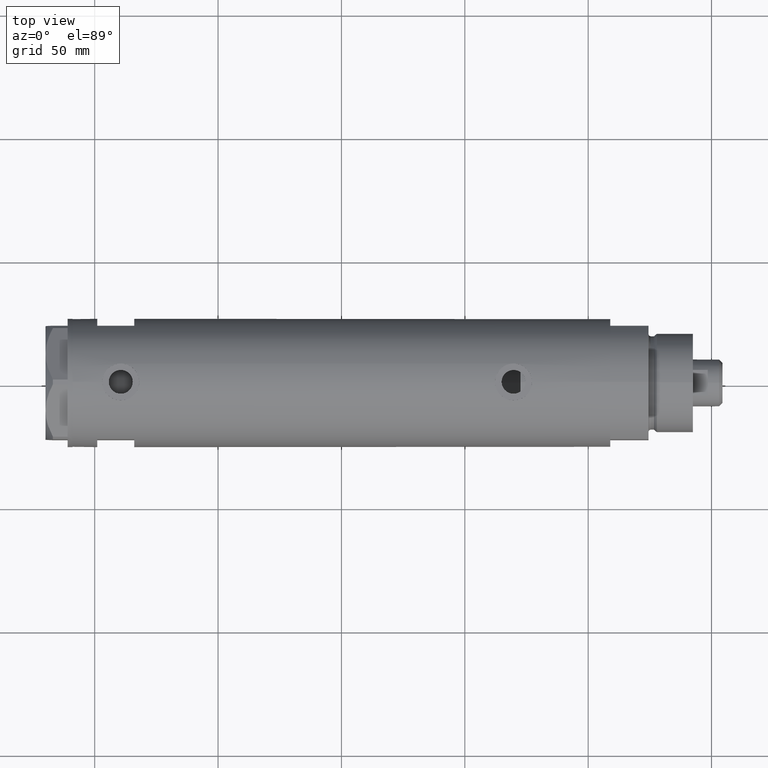
[diagram: clean part render]
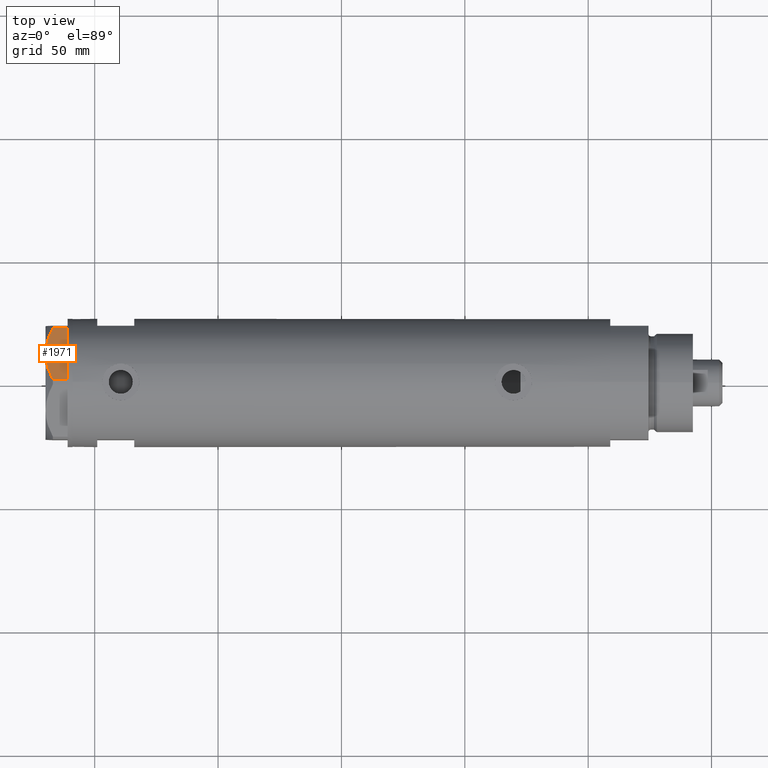
[diagram: same view with one face highlighted and labeled with its STEP entity id]
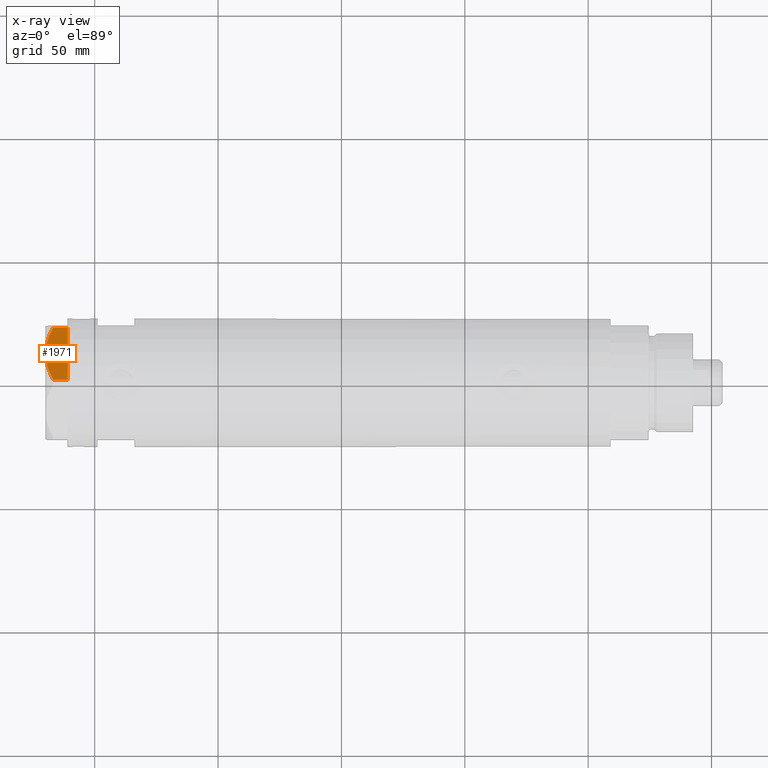
[diagram: x-ray of the same camera — body ghosted, the highlighted face saturated]
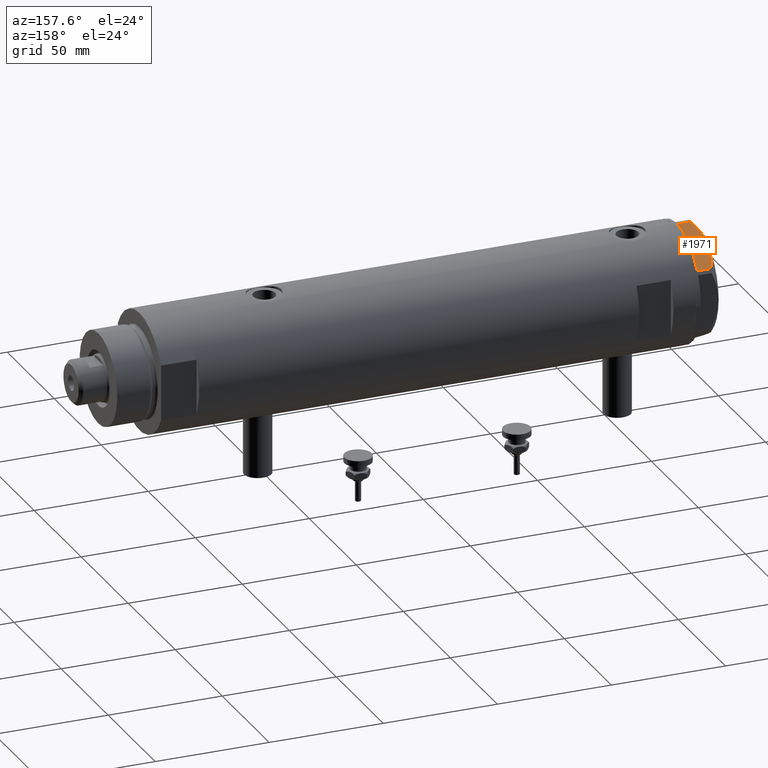
[diagram: same view with one face highlighted and labeled with its STEP entity id]
A machine part, top view. The second image highlights one B-rep face of the part: STEP entity #1971.
The next image is the same camera in x-ray: the body ghosted, the highlighted face saturated — about 0% of this face is hidden behind the body in this view.
A second angle (auxiliary view) of the same face is appended — the face is thin or edge-on in the first view.
In plain terms, the highlighted planar face has unit normal (-0, -0.5, -0.866).
Its self-contained STEP definition (entity closure, byte-faithful):
#112 = CARTESIAN_POINT ( 'NONE',  ( 1.000000000000106803, -25.98076211353316367, 0.000000000000000000 ) ) ;
#117 = PLANE ( 'NONE',  #3287 ) ;
#153 = CARTESIAN_POINT ( 'NONE',  ( 22.00000000000017053, -13.85640646055075464, 0.000000000000000000 ) ) ;
#367 = VERTEX_POINT ( 'NONE', #2540 ) ;
#372 = LINE ( 'NONE', #936, #1645 ) ;
#376 = VERTEX_POINT ( 'NONE', #6236 ) ;
#493 = CARTESIAN_POINT ( 'NONE',  ( 2.626494320835812690, -25.04170517956324460, 6.877782426143459915 ) ) ;
#521 = DIRECTION ( 'NONE',  ( -0.8660254037844344888, -0.5000000000000069944, 0.000000000000000000 ) ) ;
#659 = ORIENTED_EDGE ( 'NONE', *, *, #2680, .T. ) ;
#778 = CARTESIAN_POINT ( 'NONE',  ( 22.03005154776152352, -13.83905619136116449, 5.983800287807632401 ) ) ;
#798 = LINE ( 'NONE', #1820, #1871 ) ;
#903 = CARTESIAN_POINT ( 'NONE',  ( 11.50000000000018296, -19.91858428704203732, 9.000000000000000000 ) ) ;
#918 = ORIENTED_EDGE ( 'NONE', *, *, #2246, .F. ) ;
#936 = CARTESIAN_POINT ( 'NONE',  ( 1.854543075583504180E-13, -26.55811238272274366, 0.000000000000000000 ) ) ;
#1132 = CARTESIAN_POINT ( 'NONE',  ( 1.854543075583504180E-13, -26.55811238272274366, 0.000000000000000000 ) ) ;
#1258 = CARTESIAN_POINT ( 'NONE',  ( 18.64279229058404752, -15.79469123530767227, 7.570552255229726413 ) ) ;
#1429 = EDGE_CURVE ( 'NONE', #2924, #5783, #372, .T. ) ;
#1481 = EDGE_CURVE ( 'NONE', #367, #3460, #2792, .T. ) ;
#1645 = VECTOR ( 'NONE', #3845, 999.9999999999998863 ) ;
#1705 = ORIENTED_EDGE ( 'NONE', *, *, #1481, .F. ) ;
#1728 = CARTESIAN_POINT ( 'NONE',  ( 17.77001848220201907, -16.29858742851870090, 7.892128867758446908 ) ) ;
#1820 = CARTESIAN_POINT ( 'NONE',  ( 22.03005154776152352, -13.83905619136116449, 9.000000000000000000 ) ) ;
#1871 = VECTOR ( 'NONE', #5179, 1000.000000000000000 ) ;
#1877 = CARTESIAN_POINT ( 'NONE',  ( 6.946777556903783513, -22.54738849024392877, 8.426899937603783641 ) ) ;
#1971 = ADVANCED_FACE ( 'NONE', ( #4423 ), #117, .F. ) ;
#2008 = VERTEX_POINT ( 'NONE', #153 ) ;
#2048 = ORIENTED_EDGE ( 'NONE', *, *, #3886, .T. ) ;
#2064 = LINE ( 'NONE', #1132, #4816 ) ;
#2224 = CARTESIAN_POINT ( 'NONE',  ( 13.32175508098997518, -18.86679350063488059, 9.000000000000094147 ) ) ;
#2246 = EDGE_CURVE ( 'NONE', #3460, #5089, #2474, .T. ) ;
#2308 = CARTESIAN_POINT ( 'NONE',  ( 1.854543075583504180E-13, -26.55811238272274366, 0.000000000000000000 ) ) ;
#2348 = CARTESIAN_POINT ( 'NONE',  ( 4.320186229910052411, -24.06385169993491857, 7.629374868826107381 ) ) ;
#2474 = B_SPLINE_CURVE_WITH_KNOTS ( 'NONE', 3,
 ( #4132, #2224, #4160, #6114, #1728, #1258, #3211, #5156, #4667, #778 ),
 .UNSPECIFIED., .F., .F.,
 ( 4, 2, 2, 2, 4 ),
 ( 0.01376519981810312224, 0.01998941321701588197, 0.02154546656674407104, 0.02310151991647226011, 0.02621362661592864518 ),
 .UNSPECIFIED. ) ;
#2540 = CARTESIAN_POINT ( 'NONE',  ( 0.9699484522386233598, -25.99811238272281244, 5.983800287807552465 ) ) ;
#2544 = DIRECTION ( 'NONE',  ( -0.5000000000000071054, 0.8660254037844345998, 0.000000000000000000 ) ) ;
#2586 = VECTOR ( 'NONE', #5717, 999.9999999999998863 ) ;
#2649 = CARTESIAN_POINT ( 'NONE',  ( 11.50000000000018296, -19.91858428704203732, 9.000000000000000000 ) ) ;
#2680 = EDGE_CURVE ( 'NONE', #376, #5089, #798, .T. ) ;
#2792 = B_SPLINE_CURVE_WITH_KNOTS ( 'NONE', 3,
 ( #5830, #493, #2348, #1877, #5777, #5870, #3410, #2934, #4325, #903 ),
 .UNSPECIFIED., .F., .F.,
 ( 4, 2, 2, 2, 4 ),
 ( 0.001228959670438524313, 0.007497079744270824901, 0.01063113978118697747, 0.01219816979964504985, 0.01376519981810312224 ),
 .UNSPECIFIED. ) ;
#2924 = VERTEX_POINT ( 'NONE', #3136 ) ;
#2934 = CARTESIAN_POINT ( 'NONE',  ( 10.58093321976977386, -20.44920774001120733, 8.981686407609503320 ) ) ;
#3136 = CARTESIAN_POINT ( 'NONE',  ( 0.9699484522387654684, -25.99811238272272718, 0.000000000000000000 ) ) ;
#3211 = CARTESIAN_POINT ( 'NONE',  ( 19.07486218897004093, -15.54523556316577704, 7.397272853991418096 ) ) ;
#3287 = AXIS2_PLACEMENT_3D ( 'NONE', #5929, #2544, #521 ) ;
#3363 = DIRECTION ( 'NONE',  ( 0.000000000000000000, 0.000000000000000000, -1.000000000000000000 ) ) ;
#3410 = CARTESIAN_POINT ( 'NONE',  ( 9.656518383329995459, -20.98291889467261129, 8.907842277728439839 ) ) ;
#3460 = VERTEX_POINT ( 'NONE', #2649 ) ;
#3845 = DIRECTION ( 'NONE',  ( 0.8660254037844345998, 0.5000000000000069944, 0.000000000000000000 ) ) ;
#3886 = EDGE_CURVE ( 'NONE', #367, #2924, #4217, .T. ) ;
#3890 = VECTOR ( 'NONE', #3363, 1000.000000000000000 ) ;
#4132 = CARTESIAN_POINT ( 'NONE',  ( 11.50000000000018296, -19.91858428704203732, 9.000000000000000000 ) ) ;
#4160 = CARTESIAN_POINT ( 'NONE',  ( 15.11535457301044261, -17.83125835109846591, 8.707651728477005193 ) ) ;
#4217 = LINE ( 'NONE', #4785, #3890 ) ;
#4319 = ORIENTED_EDGE ( 'NONE', *, *, #4505, .T. ) ;
#4325 = CARTESIAN_POINT ( 'NONE',  ( 11.04134848610953235, -20.18338686205092714, 9.000000000000095923 ) ) ;
#4423 = FACE_OUTER_BOUND ( 'NONE', #5587, .T. ) ;
#4505 = EDGE_CURVE ( 'NONE', #2008, #376, #5174, .T. ) ;
#4667 = CARTESIAN_POINT ( 'NONE',  ( 21.20080365460326988, -14.31782268570101735, 6.431317509509397290 ) ) ;
#4785 = CARTESIAN_POINT ( 'NONE',  ( 0.9699484522387652463, -25.99811238272272718, 9.000000000000000000 ) ) ;
#4816 = VECTOR ( 'NONE', #5067, 999.9999999999998863 ) ;
#4950 = EDGE_CURVE ( 'NONE', #5783, #2008, #2064, .T. ) ;
#4969 = CARTESIAN_POINT ( 'NONE',  ( 22.03005154776152352, -13.83905619136116449, 5.983800287807632401 ) ) ;
#5067 = DIRECTION ( 'NONE',  ( 0.8660254037844345998, 0.5000000000000069944, 0.000000000000000000 ) ) ;
#5089 = VERTEX_POINT ( 'NONE', #4969 ) ;
#5156 = CARTESIAN_POINT ( 'NONE',  ( 20.35958612119336308, -14.80349985506228094, 6.844201024438393510 ) ) ;
#5174 = LINE ( 'NONE', #2308, #2586 ) ;
#5179 = DIRECTION ( 'NONE',  ( 0.000000000000000000, 0.000000000000000000, 1.000000000000000000 ) ) ;
#5354 = ORIENTED_EDGE ( 'NONE', *, *, #1429, .T. ) ;
#5587 = EDGE_LOOP ( 'NONE', ( #1705, #2048, #5354, #5898, #4319, #659, #918 ) ) ;
#5717 = DIRECTION ( 'NONE',  ( 0.8660254037844345998, 0.5000000000000069944, 0.000000000000000000 ) ) ;
#5777 = CARTESIAN_POINT ( 'NONE',  ( 7.836767740116735048, -22.03355241838978884, 8.637313967156950767 ) ) ;
#5783 = VERTEX_POINT ( 'NONE', #112 ) ;
#5830 = CARTESIAN_POINT ( 'NONE',  ( 0.9699484522386233598, -25.99811238272281244, 5.983800287807552465 ) ) ;
#5870 = CARTESIAN_POINT ( 'NONE',  ( 9.197898616903062319, -21.24770314027487572, 8.852712638955805957 ) ) ;
#5898 = ORIENTED_EDGE ( 'NONE', *, *, #4950, .T. ) ;
#5929 = CARTESIAN_POINT ( 'NONE',  ( 1.854543075583504180E-13, -26.55811238272274366, 9.000000000000000000 ) ) ;
#6114 = CARTESIAN_POINT ( 'NONE',  ( 17.32831362639727146, -16.55360584591992890, 8.040681765829337024 ) ) ;
#6236 = CARTESIAN_POINT ( 'NONE',  ( 22.03005154776152708, -13.83905619136116449, 0.000000000000000000 ) ) ;